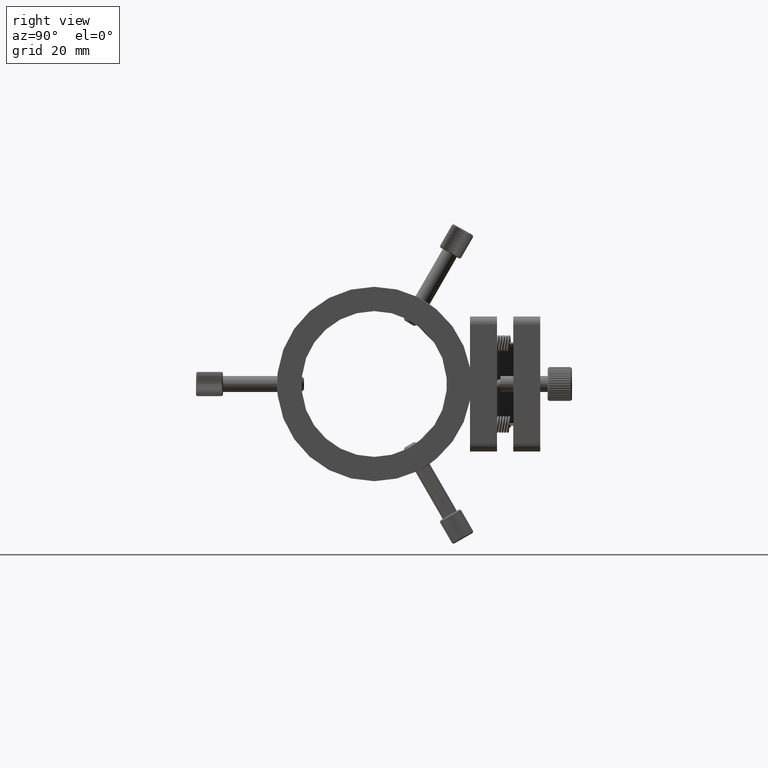
[diagram: clean part render]
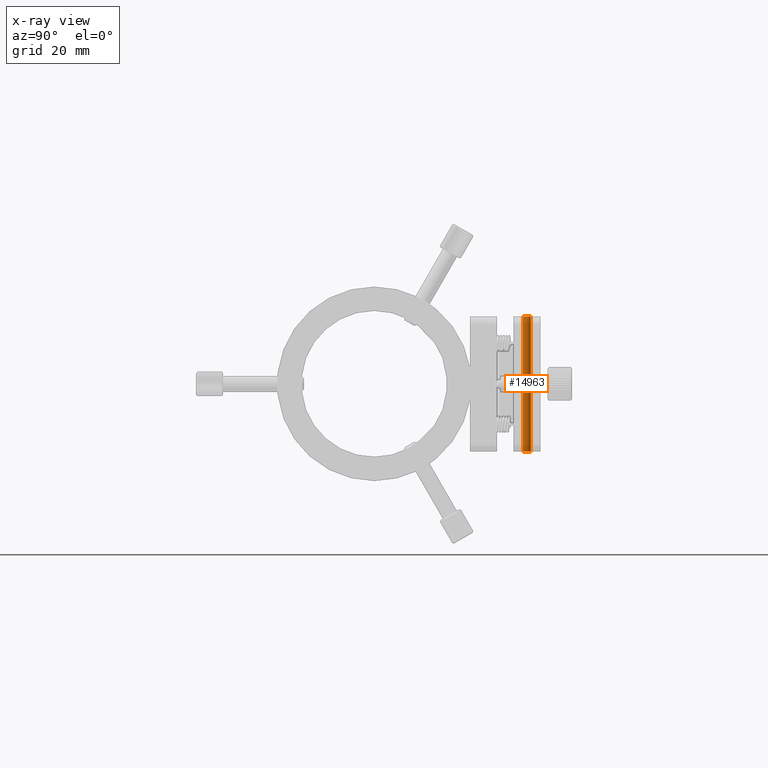
[diagram: x-ray — body ghosted, one internal face saturated and labeled with its STEP entity id]
A machine part, right view, then the same camera in x-ray: the body is ghosted and one INTERNAL B-rep face — a face not visible from any outside direction — is saturated and labeled: STEP entity #14963.
In plain terms, the highlighted cylindrical surface (edge-blend (fillet) strip) has radius 1.5 mm, axis along (0, -0, 1).
Its self-contained STEP definition (entity closure, byte-faithful):
#2244 = VERTEX_POINT ( 'NONE', #19481 ) ;
#2697 = CARTESIAN_POINT ( 'NONE',  ( -95.13306085376932200, 5.087042082954891200, -24.99999999999992900 ) ) ;
#5235 = CARTESIAN_POINT ( 'NONE',  ( -95.13306085376933700, 3.587042082954892100, -24.99999999999992900 ) ) ;
#7177 = VERTEX_POINT ( 'NONE', #35595 ) ;
#7353 = EDGE_CURVE ( 'NONE', #13481, #2244, #26243, .T. ) ;
#7854 = AXIS2_PLACEMENT_3D ( 'NONE', #32648, #36729, #21244 ) ;
#9432 = VECTOR ( 'NONE', #21187, 1000.000000000000000 ) ;
#10633 = CIRCLE ( 'NONE', #7854, 1.499999999999999100 ) ;
#10898 = CARTESIAN_POINT ( 'NONE',  ( -95.13306085376933700, 2.087042082954892600, -24.99999999999992900 ) ) ;
#13481 = VERTEX_POINT ( 'NONE', #26361 ) ;
#13784 = EDGE_CURVE ( 'NONE', #20545, #7177, #25908, .T. ) ;
#13946 = CARTESIAN_POINT ( 'NONE',  ( -95.13306085376933700, 5.087042082954891200, -24.99999999999992900 ) ) ;
#14963 = ADVANCED_FACE ( 'NONE', ( #21710 ), #47667, .T. ) ;
#15798 = ORIENTED_EDGE ( 'NONE', *, *, #7353, .F. ) ;
#16254 = DIRECTION ( 'NONE',  ( 0.0000000000000000000, 1.000000000000000000, 0.0000000000000000000 ) ) ;
#17126 = AXIS2_PLACEMENT_3D ( 'NONE', #27164, #46558, #16254 ) ;
#19481 = CARTESIAN_POINT ( 'NONE',  ( -95.13306085376932200, 2.087042082954892100, 25.00000000000007500 ) ) ;
#19633 = DIRECTION ( 'NONE',  ( 0.0000000000000000000, -1.000000000000000000, 0.0000000000000000000 ) ) ;
#20545 = VERTEX_POINT ( 'NONE', #2697 ) ;
#21187 = DIRECTION ( 'NONE',  ( 1.665334536937735300E-016, -2.652399341388103000E-017, 1.000000000000000000 ) ) ;
#21244 = DIRECTION ( 'NONE',  ( 0.0000000000000000000, 1.000000000000000000, 0.0000000000000000000 ) ) ;
#21710 = FACE_OUTER_BOUND ( 'NONE', #25859, .T. ) ;
#24000 = CIRCLE ( 'NONE', #17126, 1.499999999999999600 ) ;
#24620 = ORIENTED_EDGE ( 'NONE', *, *, #39124, .T. ) ;
#25006 = AXIS2_PLACEMENT_3D ( 'NONE', #5235, #38415, #19633 ) ;
#25859 = EDGE_LOOP ( 'NONE', ( #42217, #39343, #24620, #15798 ) ) ;
#25908 = LINE ( 'NONE', #13946, #9432 ) ;
#26243 = LINE ( 'NONE', #10898, #48666 ) ;
#26361 = CARTESIAN_POINT ( 'NONE',  ( -95.13306085376932200, 2.087042082954892600, -24.99999999999992900 ) ) ;
#27164 = CARTESIAN_POINT ( 'NONE',  ( -95.13306085376929400, 3.587042082954891700, 25.00000000000007500 ) ) ;
#32648 = CARTESIAN_POINT ( 'NONE',  ( -95.13306085376933700, 3.587042082954892100, -24.99999999999992900 ) ) ;
#35508 = EDGE_CURVE ( 'NONE', #20545, #13481, #10633, .T. ) ;
#35595 = CARTESIAN_POINT ( 'NONE',  ( -95.13306085376932200, 5.087042082954891200, 25.00000000000007500 ) ) ;
#36729 = DIRECTION ( 'NONE',  ( -1.665334536937735300E-016, 2.652399341388103000E-017, -1.000000000000000000 ) ) ;
#38415 = DIRECTION ( 'NONE',  ( 1.665334536937735300E-016, -2.652399341388103000E-017, 1.000000000000000000 ) ) ;
#39124 = EDGE_CURVE ( 'NONE', #7177, #2244, #24000, .T. ) ;
#39343 = ORIENTED_EDGE ( 'NONE', *, *, #13784, .T. ) ;
#40833 = DIRECTION ( 'NONE',  ( 1.665334536937735300E-016, -2.652399341388103000E-017, 1.000000000000000000 ) ) ;
#42217 = ORIENTED_EDGE ( 'NONE', *, *, #35508, .F. ) ;
#46558 = DIRECTION ( 'NONE',  ( -1.665334536937735300E-016, 2.652399341388103000E-017, -1.000000000000000000 ) ) ;
#47667 = CYLINDRICAL_SURFACE ( 'NONE', #25006, 1.499999999999999600 ) ;
#48666 = VECTOR ( 'NONE', #40833, 1000.000000000000000 ) ;